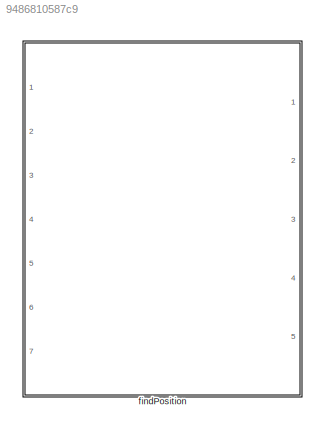
MODEL slx_9486810587c9
KIND library
CONFIG AbsTol = auto
CONFIG EnableMultiTasking = off
CONFIG FixedStep = auto
CONFIG MaxStep = auto
CONFIG MinStep = auto
CONFIG RelTol = 1e-3
CONFIG SampleTimeConstraint = Unconstrained
CONFIG Solver = VariableStepAuto
CONFIG SolverName = VariableStepAuto
CONFIG StartTime = 0.0
CONFIG StopTime = 10.0
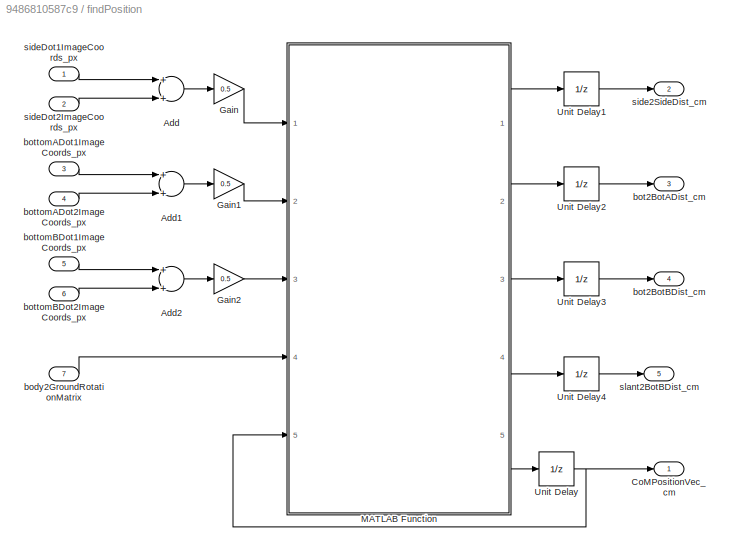
BLOCK [SubSystem] findPosition
  Ports = [7, 5]
  RequestExecContextInheritance = off
BLOCK [Sum] findPosition/Add
  InputSameDT = off
  OutDataTypeStr = Inherit: Inherit via internal rule
  Ports = [2, 1]
  SaturateOnIntegerOverflow = off
BLOCK [Sum] findPosition/Add1
  InputSameDT = off
  OutDataTypeStr = Inherit: Inherit via internal rule
  Ports = [2, 1]
  SaturateOnIntegerOverflow = off
BLOCK [Sum] findPosition/Add2
  InputSameDT = off
  OutDataTypeStr = Inherit: Inherit via internal rule
  Ports = [2, 1]
  SaturateOnIntegerOverflow = off
BLOCK [Outport] findPosition/CoMPositionVec_cm
  IconDisplay = Port number
BLOCK [Gain] findPosition/Gain
  Gain = 0.5
  OutDataTypeStr = Inherit: Inherit via internal rule
  ParamDataTypeStr = Inherit: Inherit via internal rule
  SaturateOnIntegerOverflow = off
BLOCK [Gain] findPosition/Gain1
  Gain = 0.5
  OutDataTypeStr = Inherit: Inherit via internal rule
  ParamDataTypeStr = Inherit: Inherit via internal rule
  SaturateOnIntegerOverflow = off
BLOCK [Gain] findPosition/Gain2
  Gain = 0.5
  OutDataTypeStr = Inherit: Inherit via internal rule
  ParamDataTypeStr = Inherit: Inherit via internal rule
  SaturateOnIntegerOverflow = off
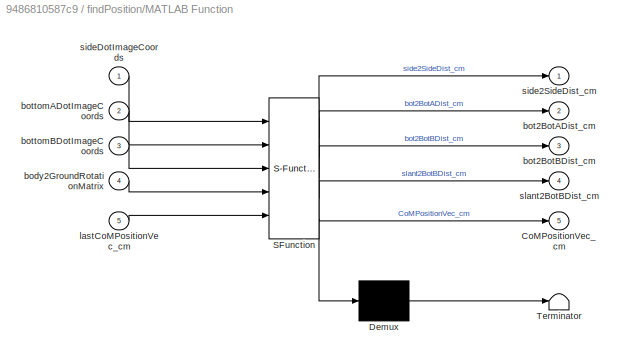
BLOCK [SubSystem] findPosition/MATLAB Function
  ErrorFcn = Stateflow.Translate.translate
  PermitHierarchicalResolution = ExplicitOnly
  Ports = [5, 5]
  RequestExecContextInheritance = off
  SFBlockType = MATLAB Function
  TreatAsAtomicUnit = on
BLOCK [Demux] findPosition/MATLAB Function/ Demux 
  Outputs = 1
  Ports = [1, 1]
BLOCK [S-Function] findPosition/MATLAB Function/ SFunction 
  EnableBusSupport = off
  FunctionName = sf_sfun
  Parameters = alpha0,alphaBar,bot2GroundRotationMatrix,bottomCameraPositionVec_cm,bottomDotAPositionVec_cm,bottomDotBPositionVec_cm,cameraFOVAngle_deg,gamma,imageDims,side2GroundRotationMatrix,sideCameraPositionVec_cm,sideDotPositionVec_cm,slant2GroundRotationMatrix,slantCameraPositionVec_cm
  PortCounts = [5 6]
  Ports = [5, 6]
  SFcnIsStateOwnerBlock = off
  SFunctionDeploymentMode = off
  Tag = Stateflow S-Function findPosition_ul 2
BLOCK [Terminator] findPosition/MATLAB Function/ Terminator 
BLOCK [Outport] findPosition/MATLAB Function/CoMPositionVec_cm
  IconDisplay = Port number
  Port = 5
BLOCK [Inport] findPosition/MATLAB Function/body2GroundRotationMatrix
  IconDisplay = Port number
  Port = 4
BLOCK [Outport] findPosition/MATLAB Function/bot2BotADist_cm
  IconDisplay = Port number
  Port = 2
BLOCK [Outport] findPosition/MATLAB Function/bot2BotBDist_cm
  IconDisplay = Port number
  Port = 3
BLOCK [Inport] findPosition/MATLAB Function/bottomADotImageCoords
  IconDisplay = Port number
  Port = 2
BLOCK [Inport] findPosition/MATLAB Function/bottomBDotImageCoords
  IconDisplay = Port number
  Port = 3
BLOCK [Inport] findPosition/MATLAB Function/lastCoMPositionVec_cm
  IconDisplay = Port number
  Port = 5
BLOCK [Outport] findPosition/MATLAB Function/side2SideDist_cm
  IconDisplay = Port number
BLOCK [Inport] findPosition/MATLAB Function/sideDotImageCoords
  IconDisplay = Port number
BLOCK [Outport] findPosition/MATLAB Function/slant2BotBDist_cm
  IconDisplay = Port number
  Port = 4
BLOCK [UnitDelay] findPosition/Unit Delay
  InitialCondition = initialCoMPositionVec_cm
  InputProcessing = Elements as channels (sample based)
  SampleTime = -1
BLOCK [UnitDelay] findPosition/Unit Delay1
  InitialCondition = side2SideDist_init
  InputProcessing = Elements as channels (sample based)
  SampleTime = -1
BLOCK [UnitDelay] findPosition/Unit Delay2
  InitialCondition = bot2BotADistInit_cm
  InputProcessing = Elements as channels (sample based)
  SampleTime = -1
BLOCK [UnitDelay] findPosition/Unit Delay3
  InitialCondition = bot2BotBDistInit_cm
  InputProcessing = Elements as channels (sample based)
  SampleTime = -1
BLOCK [UnitDelay] findPosition/Unit Delay4
  InitialCondition = slant2BotBDistInit_cm
  InputProcessing = Elements as channels (sample based)
  SampleTime = -1
BLOCK [Inport] findPosition/body2GroundRotationMatrix
  IconDisplay = Port number
  Port = 7
BLOCK [Outport] findPosition/bot2BotADist_cm
  IconDisplay = Port number
  Port = 3
BLOCK [Outport] findPosition/bot2BotBDist_cm
  IconDisplay = Port number
  Port = 4
BLOCK [Inport] findPosition/bottomADot1ImageCoords_px
  IconDisplay = Port number
  Port = 3
BLOCK [Inport] findPosition/bottomADot2ImageCoords_px
  IconDisplay = Port number
  Port = 4
BLOCK [Inport] findPosition/bottomBDot1ImageCoords_px
  IconDisplay = Port number
  Port = 5
BLOCK [Inport] findPosition/bottomBDot2ImageCoords_px
  IconDisplay = Port number
  Port = 6
BLOCK [Outport] findPosition/side2SideDist_cm
  IconDisplay = Port number
  Port = 2
BLOCK [Inport] findPosition/sideDot1ImageCoords_px
  IconDisplay = Port number
BLOCK [Inport] findPosition/sideDot2ImageCoords_px
  IconDisplay = Port number
  Port = 2
BLOCK [Outport] findPosition/slant2BotBDist_cm
  IconDisplay = Port number
  Port = 5
LINE findPosition/Add1:1 -> findPosition/Gain1:1
LINE findPosition/Add2:1 -> findPosition/Gain2:1
LINE findPosition/Add:1 -> findPosition/Gain:1
LINE findPosition/Gain1:1 -> findPosition/MATLAB Function:2
LINE findPosition/Gain2:1 -> findPosition/MATLAB Function:3
LINE findPosition/Gain:1 -> findPosition/MATLAB Function:1
LINE findPosition/MATLAB Function:1 -> findPosition/Unit Delay1:1
LINE findPosition/MATLAB Function:2 -> findPosition/Unit Delay2:1
LINE findPosition/MATLAB Function:3 -> findPosition/Unit Delay3:1
LINE findPosition/MATLAB Function:4 -> findPosition/Unit Delay4:1
LINE findPosition/MATLAB Function:5 -> findPosition/Unit Delay:1
LINE findPosition/Unit Delay1:1 -> findPosition/side2SideDist_cm:1
LINE findPosition/Unit Delay2:1 -> findPosition/bot2BotADist_cm:1
LINE findPosition/Unit Delay3:1 -> findPosition/bot2BotBDist_cm:1
LINE findPosition/Unit Delay4:1 -> findPosition/slant2BotBDist_cm:1
NET findPosition/Unit Delay:1 -> findPosition/CoMPositionVec_cm:1, findPosition/MATLAB Function:5
LINE findPosition/body2GroundRotationMatrix:1 -> findPosition/MATLAB Function:4
LINE findPosition/bottomADot1ImageCoords_px:1 -> findPosition/Add1:1
LINE findPosition/bottomADot2ImageCoords_px:1 -> findPosition/Add1:2
LINE findPosition/bottomBDot1ImageCoords_px:1 -> findPosition/Add2:1
LINE findPosition/bottomBDot2ImageCoords_px:1 -> findPosition/Add2:2
LINE findPosition/sideDot1ImageCoords_px:1 -> findPosition/Add:1
LINE findPosition/sideDot2ImageCoords_px:1 -> findPosition/Add:2
note: NET lines group one-source signal fan-out (src -> all destinations, sorted); 1:1 wires keep LINE
CHART findPosition/MATLAB Function states=1 transitions=1
  STATE_LABEL 'eML_blk_kernel()'
  STATE_LABEL 'SCRIPT:\nfunction [side2SideDist_cm,bot2BotADist_cm,...\n    bot2BotBDist_cm,slant2BotBDist_cm,CoMPositionVec_cm] = ...\n    fcn(sideDotImageCoords,bottomADotImageCoords,bottomBDotImageCoords,...\n    body2GroundRotationMatrix,lastCoMPositionVec_cm,...\n    sideDotPositionVec_cm,bottomDotAPositionVec_cm,...\n    bottomDotBPositionVec_cm,sideCameraPositionVec_cm,...\n    bottomCameraPositionVec_cm,slantCa...<+747ch>'
